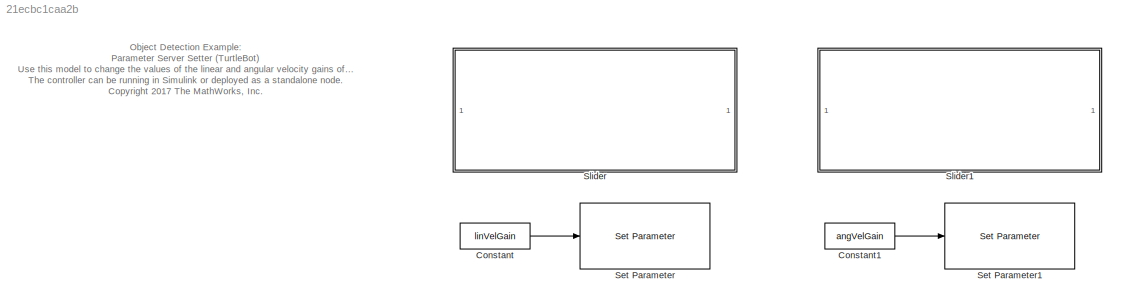
MODEL slx_21ecbc1caa2b
KIND model
CONFIG AbsTol = auto
CONFIG EnableMultiTasking = on
CONFIG FixedStep = auto
CONFIG MaxStep = auto
CONFIG MinStep = auto
CONFIG PreLoadFcn = params = controlParams;\nlinVelGain = params.linVelGain;\nangVelGain = params.angVelGain;\n\nrosshutdown;\nloadIpAddresses;\nrosinit(turtlebotIp);\n\n% Initialize ROS parameters\nrosparam('set','/gains/linear',linVelGain);\nrosparam('set','/gains/angular',angVelGain);
CONFIG RelTol = 1e-3
CONFIG SampleTimeConstraint = Unconstrained
CONFIG Solver = FixedStepDiscrete
CONFIG SolverName = FixedStepDiscrete
CONFIG StartTime = 0.0
CONFIG StopTime = inf
WORKSPACE source: MAT-file member
WORKSPACE SL_ROS_VariableLengthArrays_MaxSizes: struct (value not decoded)
BLOCK [Constant] Constant
  Value = linVelGain
BLOCK [Constant] Constant1
  Value = angVelGain
BLOCK [Reference] Set Parameter  REF=robotlib/Set Parameter
  Ports = [1]
  SourceBlock = robotlib/Set Parameter
  SourceLibraryInfo = This block requires Robotics System Toolbox
  SourceProductBaseCode = RO
  SourceProductName = Robotics System Toolbox
  SourceType = ROS Set Parameter
BLOCK [Reference] Set Parameter1  REF=robotlib/Set Parameter
  Ports = [1]
  SourceBlock = robotlib/Set Parameter
  SourceLibraryInfo = This block requires Robotics System Toolbox
  SourceProductBaseCode = RO
  SourceProductName = Robotics System Toolbox
  SourceType = ROS Set Parameter
BLOCK [SubSystem] Slider
  DialogController = hmiCreateDDGDialog
  IsWebBlock = on
  MaskHideContents = on
  Ports = []
  RequestExecContextInheritance = off
  Variant = off
BLOCK [SubSystem] Slider1
  DialogController = hmiCreateDDGDialog
  IsWebBlock = on
  MaskHideContents = on
  Ports = []
  RequestExecContextInheritance = off
  Variant = off
ANNOTATION (root): Object Detection Example: Parameter Server Setter (TurtleBot) Use this model to change the values of the linear and angular velocity gains of the object tracking controller. The controller can be running in Simulink or deployed as a standalone node. <copyright redacted>
LINE Constant1:1 -> Set Parameter1:1
LINE Constant:1 -> Set Parameter:1
